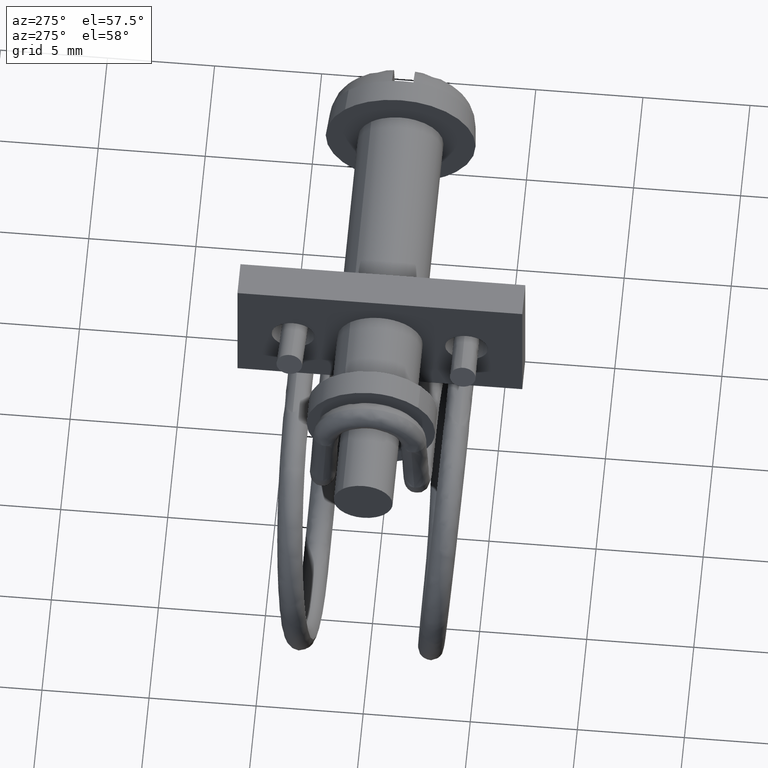
[diagram: clean part render]
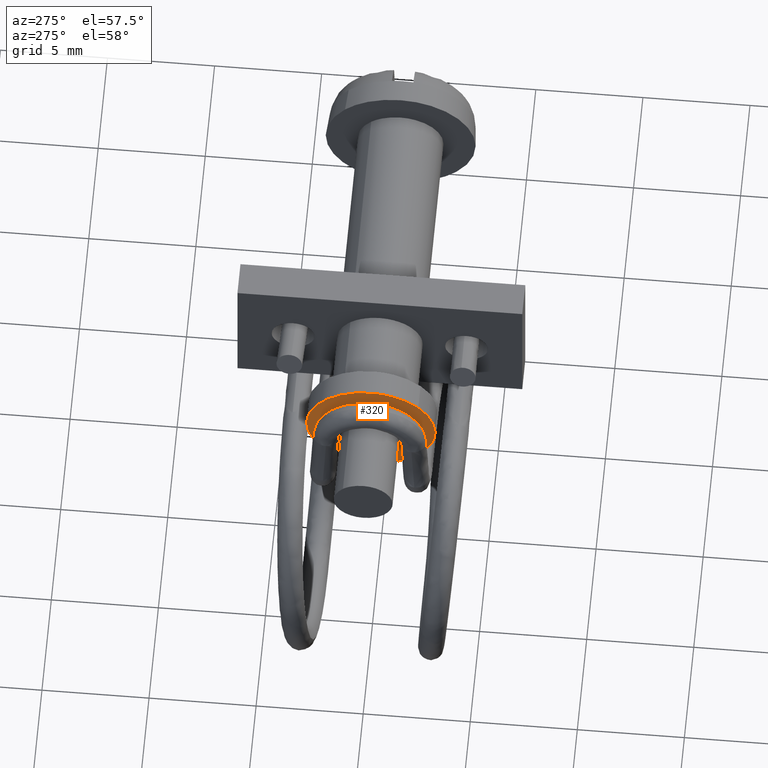
[diagram: same view with one face highlighted and labeled with its STEP entity id]
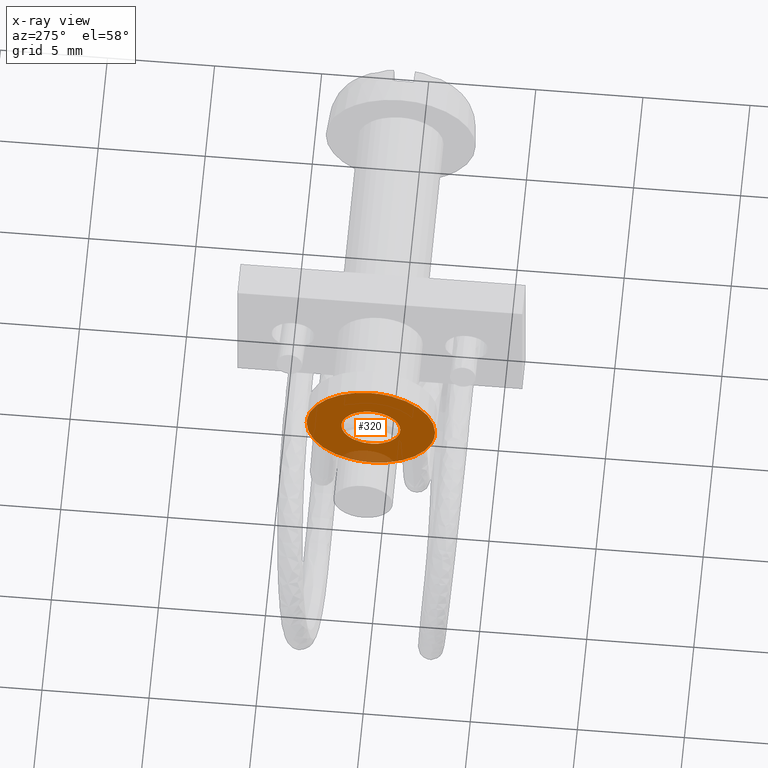
[diagram: x-ray of the same camera — body ghosted, the highlighted face saturated]
A machine part, auxiliary view. The second image highlights one B-rep face of the part: STEP entity #320.
The next image is the same camera in x-ray: the body ghosted, the highlighted face saturated — about 7% of this face is hidden behind the body in this view.
In plain terms, the highlighted face is a freeform B-spline surface patch.
Its self-contained STEP definition (entity closure, byte-faithful):
#107=CARTESIAN_POINT('',(-15.898999999999999,0.946487475466614,0.997389682536124));
#108=VERTEX_POINT('',#107);
#114=CARTESIAN_POINT('',(-15.898999999999999,1.374999999999940,-0.000000407766567));
#115=VERTEX_POINT('',#114);
#116=CARTESIAN_POINT('',(-15.898999999999999,0.946487475466614,0.997389682536124));
#117=CARTESIAN_POINT('',(-15.898999999999999,1.009728258517314,0.937382201117846));
#118=CARTESIAN_POINT('',(-15.899000000000020,1.147775178342720,0.778883399604195));
#119=CARTESIAN_POINT('',(-15.898999999999960,1.323836557848989,0.447469056459045));
#120=CARTESIAN_POINT('',(-15.899000000000081,1.375121611329404,0.162752028057414));
#121=CARTESIAN_POINT('',(-15.898999999999999,1.374999999999940,-0.000000407766567));
#122=B_SPLINE_CURVE_WITH_KNOTS('',3,(#116,#117,#118,#119,#120,#121),.UNSPECIFIED.,.F.,.U.,(4,1,1,4),(0.000000011371385,0.261545199316364,0.627703970428690,1.115927727955290),.UNSPECIFIED.);
#123=EDGE_CURVE('',#108,#115,#122,.T.);
#125=CARTESIAN_POINT('',(-15.898999999999999,0.0,-1.375000000000000));
#126=VERTEX_POINT('',#125);
#127=CARTESIAN_POINT('',(-15.898999999999999,1.374999999999940,-0.000000407766567));
#128=CARTESIAN_POINT('',(-15.898999999999861,1.375050706170788,-0.129371966583913));
#129=CARTESIAN_POINT('',(-15.899000000000351,1.344603334768524,-0.343076979483125));
#130=CARTESIAN_POINT('',(-15.898999999999640,1.239263228853047,-0.611199277950035));
#131=CARTESIAN_POINT('',(-15.899000000000330,1.089838823448756,-0.857135174612662));
#132=CARTESIAN_POINT('',(-15.898999999999781,0.865146241164018,-1.090294823650344));
#133=CARTESIAN_POINT('',(-15.899000000000131,0.577062284176711,-1.260523588095479));
#134=CARTESIAN_POINT('',(-15.898999999999999,0.286845162444673,-1.354402198419497));
#135=CARTESIAN_POINT('',(-15.898999999999999,0.101243717085524,-1.375018676868019));
#136=CARTESIAN_POINT('',(-15.898999999999999,0.0,-1.375000000000000));
#137=B_SPLINE_CURVE_WITH_KNOTS('',3,(#127,#128,#129,#130,#131,#132,#133,#134,#135,#136),.UNSPECIFIED.,.F.,.U.,(4,1,1,1,1,1,1,4),(0.000000039859915,0.388099492103042,0.641208702905185,0.860569968793545,1.248662421025085,1.603019582545652,1.856129568838969,2.159858271630687),.UNSPECIFIED.);
#138=EDGE_CURVE('',#115,#126,#137,.T.);
#140=CARTESIAN_POINT('',(-15.898999999999999,-0.946487475466611,-0.997389682536121));
#141=VERTEX_POINT('',#140);
#142=CARTESIAN_POINT('',(-15.898999999999999,0.0,-1.375000000000000));
#143=CARTESIAN_POINT('',(-15.898999999999971,-0.108745034503240,-1.375026463607677));
#144=CARTESIAN_POINT('',(-15.899000000000020,-0.293587697368795,-1.352941298386607));
#145=CARTESIAN_POINT('',(-15.899000000000040,-0.625036679898448,-1.243049436043178));
#146=CARTESIAN_POINT('',(-15.898999999999990,-0.828236831211861,-1.109772841988014));
#147=CARTESIAN_POINT('',(-15.898999999999999,-0.946487475466611,-0.997389682536121));
#148=B_SPLINE_CURVE_WITH_KNOTS('',3,(#142,#143,#144,#145,#146,#147),.UNSPECIFIED.,.F.,.U.,(4,1,1,4),(9.236204E-009,0.326229166478154,0.554584972079876,1.043931146469718),.UNSPECIFIED.);
#149=EDGE_CURVE('',#126,#141,#148,.T.);
#183=CARTESIAN_POINT('',(-15.898999999999999,-1.374999999999940,0.000000407766585));
#184=VERTEX_POINT('',#183);
#185=CARTESIAN_POINT('',(-15.898999999999999,-0.946487475466611,-0.997389682536121));
#186=CARTESIAN_POINT('',(-15.898999999999960,-1.064645419303997,-0.885453553343388));
#187=CARTESIAN_POINT('',(-15.899000000000020,-1.228830750015702,-0.661768446548627));
#188=CARTESIAN_POINT('',(-15.899000000000040,-1.352364135745935,-0.308036553467994));
#189=CARTESIAN_POINT('',(-15.898999999999910,-1.375013149895799,-0.098805229617019));
#190=CARTESIAN_POINT('',(-15.898999999999999,-1.374999999999940,0.000000407766585));
#191=B_SPLINE_CURVE_WITH_KNOTS('',3,(#185,#186,#187,#188,#189,#190),.UNSPECIFIED.,.F.,.U.,(4,1,1,4),(0.000000011371432,0.488223768889837,0.819509057608336,1.115927727955304),.UNSPECIFIED.);
#192=EDGE_CURVE('',#141,#184,#191,.T.);
#194=CARTESIAN_POINT('',(-15.898999999999999,0.0,1.375000000000000));
#195=VERTEX_POINT('',#194);
#196=CARTESIAN_POINT('',(-15.898999999999999,-1.374999999999940,0.000000407766585));
#197=CARTESIAN_POINT('',(-15.899000000000010,-1.375023480593447,0.112493187968269));
#198=CARTESIAN_POINT('',(-15.899000000000020,-1.347935609473935,0.331842013169435));
#199=CARTESIAN_POINT('',(-15.898999999999941,-1.245651601312411,0.601931394756393));
#200=CARTESIAN_POINT('',(-15.899000000000070,-1.100665922838921,0.837202906158742));
#201=CARTESIAN_POINT('',(-15.898999999999990,-0.922065715485297,1.034282733404679));
#202=CARTESIAN_POINT('',(-15.898999999999891,-0.691877335402032,1.198505092886316));
#203=CARTESIAN_POINT('',(-15.899000000000211,-0.388040982061321,1.335439448958493));
#204=CARTESIAN_POINT('',(-15.898999999999671,-0.151879682269960,1.375105184136916));
#205=CARTESIAN_POINT('',(-15.898999999999999,0.0,1.375000000000000));
#206=B_SPLINE_CURVE_WITH_KNOTS('',3,(#196,#197,#198,#199,#200,#201,#202,#203,#204,#205),.UNSPECIFIED.,.F.,.U.,(4,1,1,1,1,1,1,4),(0.000000039859259,0.337474809265282,0.658084568457340,0.860569968793206,1.164294244499665,1.451150380516116,1.704265397736006,2.159858271630681),.UNSPECIFIED.);
#207=EDGE_CURVE('',#184,#195,#206,.T.);
#209=CARTESIAN_POINT('',(-15.898999999999999,0.0,1.375000000000000));
#210=CARTESIAN_POINT('',(-15.899000000000020,0.163137349014841,1.375126291754612));
#211=CARTESIAN_POINT('',(-15.898999999999960,0.391400741243637,1.333883822932485));
#212=CARTESIAN_POINT('',(-15.899000000000051,0.708921259495140,1.189342311823119));
#213=CARTESIAN_POINT('',(-15.898999999999999,0.859745347169338,1.079761221079164));
#214=CARTESIAN_POINT('',(-15.898999999999999,0.946487475466614,0.997389682536124));
#215=B_SPLINE_CURVE_WITH_KNOTS('',3,(#209,#210,#211,#212,#213,#214),.UNSPECIFIED.,.F.,.U.,(4,1,1,4),(9.236023E-009,0.489346183637714,0.685079273525899,1.043931146469722),.UNSPECIFIED.);
#216=EDGE_CURVE('',#195,#108,#215,.T.);
#222=CARTESIAN_POINT('',(-15.898999999999999,3.299699988370778,-3.299699988370836));
#223=CARTESIAN_POINT('',(-15.898999999999999,-3.299700149303319,-3.299699988370836));
#224=CARTESIAN_POINT('',(-15.898999999999999,3.299699988370778,3.299700149303376));
#225=CARTESIAN_POINT('',(-15.898999999999999,-3.299700149303319,3.299700149303376));
#226=B_SPLINE_SURFACE_WITH_KNOTS('',1,1,((#222,#224),(#223,#225)),.UNSPECIFIED.,.F.,.F.,.U.,(2,2),(2,2),(0.0,6.599400137674096),(0.0,6.599400137674213),.UNSPECIFIED.);
#227=CARTESIAN_POINT('',(-15.898999999999999,0.0,3.0));
#228=VERTEX_POINT('',#227);
#229=CARTESIAN_POINT('',(-15.898999999999999,2.999999999999947,-0.000000564053839));
#230=VERTEX_POINT('',#229);
#231=CARTESIAN_POINT('',(-15.898999999999999,0.0,3.0));
#232=CARTESIAN_POINT('',(-15.899000000000010,0.171804129493648,3.000014961585929));
#233=CARTESIAN_POINT('',(-15.898999999999990,0.478594895898282,2.973571921855297));
#234=CARTESIAN_POINT('',(-15.899000000000020,0.884869034501520,2.874442464257457));
#235=CARTESIAN_POINT('',(-15.898999999999930,1.321661823541827,2.709065853425543));
#236=CARTESIAN_POINT('',(-15.899000000000230,1.759013945684150,2.454163742039355));
#237=CARTESIAN_POINT('',(-15.898999999999781,2.220377852266656,2.046195715248805));
#238=CARTESIAN_POINT('',(-15.899000000000090,2.571770515173701,1.584387291527631));
#239=CARTESIAN_POINT('',(-15.899000000000020,2.795909478263084,1.117821898302534));
#240=CARTESIAN_POINT('',(-15.898999999999949,2.956068962508132,0.601288849647969));
#241=CARTESIAN_POINT('',(-15.899000000000070,3.000063888171284,0.245443872091220));
#242=CARTESIAN_POINT('',(-15.898999999999999,2.999999999999947,-0.000000564053839));
#243=B_SPLINE_CURVE_WITH_KNOTS('',3,(#231,#232,#233,#234,#235,#236,#237,#238,#239,#240,#241,#242),.UNSPECIFIED.,.F.,.U.,(4,1,1,1,1,1,1,1,1,4),(0.000000012970498,0.515413065529326,0.920392085466398,1.251737366079687,1.914425053985828,2.429834842905234,3.092521057172184,3.644762565044688,3.976107254213216,4.712418866537575),.UNSPECIFIED.);
#244=EDGE_CURVE('',#228,#230,#243,.T.);
#245=ORIENTED_EDGE('',*,*,#244,.T.);
#246=CARTESIAN_POINT('',(-15.899000000002960,2.211832121836974,-2.026770709200051));
#247=VERTEX_POINT('',#246);
#248=CARTESIAN_POINT('',(-15.898999999999999,2.999999999999947,-0.000000564053839));
#249=CARTESIAN_POINT('',(-15.899000000000360,3.000040850590658,-0.220215888404168));
#250=CARTESIAN_POINT('',(-15.899000000000751,2.960253317461024,-0.579490028075337));
#251=CARTESIAN_POINT('',(-15.899000000001630,2.824140375094075,-1.035972322822334));
#252=CARTESIAN_POINT('',(-15.899000000002070,2.612449410877531,-1.513596331614608));
#253=CARTESIAN_POINT('',(-15.899000000002729,2.392005566854282,-1.830288177628514));
#254=CARTESIAN_POINT('',(-15.899000000002960,2.211832121836974,-2.026770709200051));
#255=B_SPLINE_CURVE_WITH_KNOTS('',3,(#248,#249,#250,#251,#252,#253,#254),.UNSPECIFIED.,.F.,.U.,(4,1,1,1,4),(5.406453E-009,0.660638074714264,1.077886155646540,1.425584335982969,2.225306727248206),.UNSPECIFIED.);
#256=EDGE_CURVE('',#230,#247,#255,.T.);
#257=ORIENTED_EDGE('',*,*,#256,.T.);
#258=CARTESIAN_POINT('',(-15.898999999999999,0.0,-3.0));
#259=VERTEX_POINT('',#258);
#260=CARTESIAN_POINT('',(-15.899000000002960,2.211832121836974,-2.026770709200051));
#261=CARTESIAN_POINT('',(-15.899000000002729,2.010645161268591,-2.246542340117328));
#262=CARTESIAN_POINT('',(-15.899000000002101,1.633703301520456,-2.551092000307489));
#263=CARTESIAN_POINT('',(-15.899000000001539,1.104223653852341,-2.800586869679208));
#264=CARTESIAN_POINT('',(-15.899000000000690,0.595840432341878,-2.956702829702735));
#265=CARTESIAN_POINT('',(-15.899000000000470,0.246128106831949,-3.000071980493452));
#266=CARTESIAN_POINT('',(-15.898999999999999,0.0,-3.0));
#267=B_SPLINE_CURVE_WITH_KNOTS('',3,(#260,#261,#262,#263,#264,#265,#266),.UNSPECIFIED.,.F.,.U.,(4,1,1,1,4),(4.099004E-009,0.893808980307674,1.437857129594916,1.748749544733136,2.487111641353368),.UNSPECIFIED.);
#268=EDGE_CURVE('',#247,#259,#267,.T.);
#269=ORIENTED_EDGE('',*,*,#268,.T.);
#270=CARTESIAN_POINT('',(-15.898999999999999,-2.999999999999947,0.000000564053759));
#271=VERTEX_POINT('',#270);
#272=CARTESIAN_POINT('',(-15.898999999999999,0.0,-3.0));
#273=CARTESIAN_POINT('',(-15.899000000000040,-0.233167151680882,-3.000039956902775));
#274=CARTESIAN_POINT('',(-15.898999999999960,-0.699484489807206,-2.945379754854968));
#275=CARTESIAN_POINT('',(-15.899000000000020,-1.279850688876756,-2.733694053697464));
#276=CARTESIAN_POINT('',(-15.899000000000020,-1.775902770286615,-2.436336682222690));
#277=CARTESIAN_POINT('',(-15.898999999999999,-2.130721685258661,-2.130286310003566));
#278=CARTESIAN_POINT('',(-15.898999999999999,-2.423588786334182,-1.782179733922107));
#279=CARTESIAN_POINT('',(-15.899000000000029,-2.669441240864470,-1.399203693167737));
#280=CARTESIAN_POINT('',(-15.898999999999971,-2.863781572042918,-0.945859780813027));
#281=CARTESIAN_POINT('',(-15.899000000000020,-2.977365069694150,-0.454054847220426));
#282=CARTESIAN_POINT('',(-15.898999999999839,-3.000007428234550,-0.147261374603028));
#283=CARTESIAN_POINT('',(-15.898999999999999,-2.999999999999947,0.000000564053759));
#284=B_SPLINE_CURVE_WITH_KNOTS('',3,(#272,#273,#274,#275,#276,#277,#278,#279,#280,#281,#282,#283),.UNSPECIFIED.,.F.,.U.,(4,1,1,1,1,1,1,1,1,4),(0.000000012971632,0.699499328509562,1.398999946659975,1.840789263992511,2.429834842905779,2.797998031601466,3.202971247890342,3.792027027353754,4.270630279943915,4.712418866537517),.UNSPECIFIED.);
#285=EDGE_CURVE('',#259,#271,#284,.T.);
#286=ORIENTED_EDGE('',*,*,#285,.T.);
#287=CARTESIAN_POINT('',(-15.899000000002960,-2.211832121836959,2.026770709200037));
#288=VERTEX_POINT('',#287);
#289=CARTESIAN_POINT('',(-15.898999999999999,-2.999999999999947,0.000000564053759));
#290=CARTESIAN_POINT('',(-15.899000000000351,-3.000057817279638,0.243396547122923));
#291=CARTESIAN_POINT('',(-15.899000000001021,-2.947521275419051,0.672204334678945));
#292=CARTESIAN_POINT('',(-15.899000000001690,-2.767064302551680,1.188661104838873));
#293=CARTESIAN_POINT('',(-15.899000000002481,-2.533538512191286,1.629886639322297));
#294=CARTESIAN_POINT('',(-15.899000000002710,-2.344963567887616,1.881518461007394));
#295=CARTESIAN_POINT('',(-15.899000000002960,-2.211832121836959,2.026770709200037));
#296=B_SPLINE_CURVE_WITH_KNOTS('',3,(#289,#290,#291,#292,#293,#294,#295),.UNSPECIFIED.,.F.,.U.,(4,1,1,1,4),(5.406180E-009,0.730180427874620,1.286502287494861,1.634209210222406,2.225306727248278),.UNSPECIFIED.);
#297=EDGE_CURVE('',#271,#288,#296,.T.);
#298=ORIENTED_EDGE('',*,*,#297,.T.);
#299=CARTESIAN_POINT('',(-15.899000000002960,-2.211832121836959,2.026770709200037));
#300=CARTESIAN_POINT('',(-15.899000000002760,-2.063089237426500,2.189161909339276));
#301=CARTESIAN_POINT('',(-15.899000000002420,-1.817870920055110,2.403672252619454));
#302=CARTESIAN_POINT('',(-15.899000000001910,-1.410484367560857,2.657379686406661));
#303=CARTESIAN_POINT('',(-15.899000000001310,-1.008488117663644,2.840538581503126));
#304=CARTESIAN_POINT('',(-15.899000000000781,-0.518143046414928,2.970479947720785));
#305=CARTESIAN_POINT('',(-15.899000000000139,-0.168397344729831,3.000011270919299));
#306=CARTESIAN_POINT('',(-15.898999999999999,0.0,3.0));
#307=B_SPLINE_CURVE_WITH_KNOTS('',3,(#299,#300,#301,#302,#303,#304,#305,#306),.UNSPECIFIED.,.F.,.U.,(4,1,1,1,1,4),(4.098971E-009,0.660639114252529,0.971532091442589,1.437857129594899,1.981917919351138,2.487111641353360),.UNSPECIFIED.);
#308=EDGE_CURVE('',#288,#228,#307,.T.);
#309=ORIENTED_EDGE('',*,*,#308,.T.);
#310=EDGE_LOOP('',(#245,#257,#269,#286,#298,#309));
#311=FACE_OUTER_BOUND('',#310,.T.);
#312=ORIENTED_EDGE('',*,*,#138,.F.);
#313=ORIENTED_EDGE('',*,*,#123,.F.);
#314=ORIENTED_EDGE('',*,*,#216,.F.);
#315=ORIENTED_EDGE('',*,*,#207,.F.);
#316=ORIENTED_EDGE('',*,*,#192,.F.);
#317=ORIENTED_EDGE('',*,*,#149,.F.);
#318=EDGE_LOOP('',(#312,#313,#314,#315,#316,#317));
#319=FACE_BOUND('',#318,.T.);
#320=ADVANCED_FACE('',(#311,#319),#226,.T.);